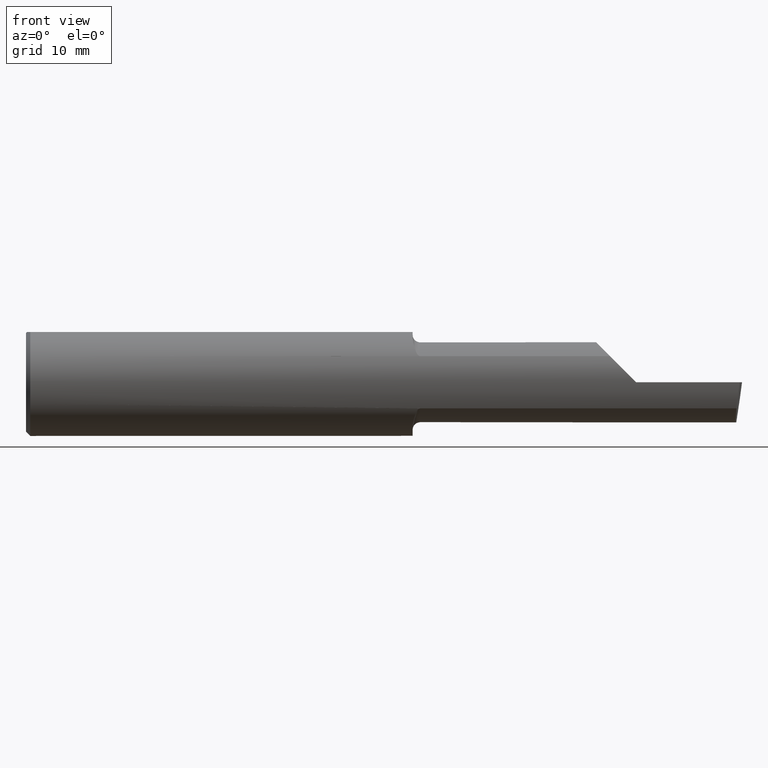
[diagram: clean part render]
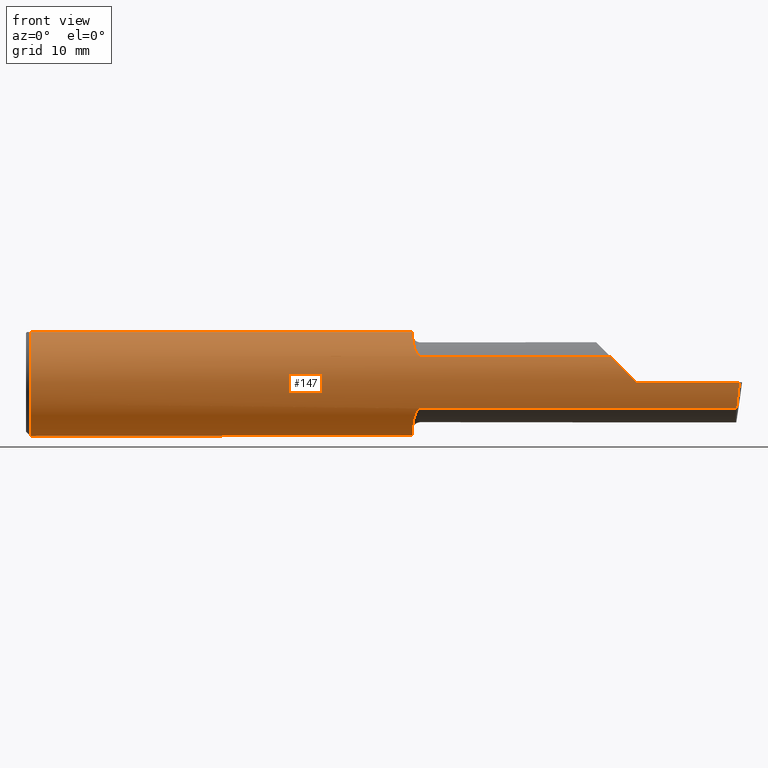
[diagram: same view with one face highlighted and labeled with its STEP entity id]
A machine part, front view. The second image highlights one B-rep face of the part: STEP entity #147.
In plain terms, the highlighted cylindrical surface (partial cylindrical patch) has radius 4.7587 mm, axis along (-1, -0, -0).
Its self-contained STEP definition (entity closure, byte-faithful):
#3 = B_SPLINE_CURVE_WITH_KNOTS ( 'NONE', 3,
 ( #516, #86, #189, #231, #9, #534, #380, #150, #422, #442, #573, #376, #489, #249 ),
 .UNSPECIFIED., .F., .F.,
 ( 4, 2, 2, 2, 2, 2, 4 ),
 ( 0.0002471551878304217224, 0.0008987327522055606026, 0.001550310316580699645, 0.002201887880955838254, 0.002527676663143406475, 0.002690571054237190368, 0.002853465445330974262 ),
 .UNSPECIFIED. ) ;
#4 = VECTOR ( 'NONE', #335, 39.37007874015748143 ) ;
#9 = CARTESIAN_POINT ( 'NONE',  ( 1.353025912205683357, -0.1310442973014113721, 0.1341609063345044484 ) ) ;
#11 = EDGE_LOOP ( 'NONE', ( #216, #279, #407, #417, #600, #201, #322, #625, #343, #109, #19, #45, #177 ) ) ;
#15 = CARTESIAN_POINT ( 'NONE',  ( 2.481080296960508580, -0.1635956445993030639, -0.09130436773856169530 ) ) ;
#18 = CARTESIAN_POINT ( 'NONE',  ( 2.491672876940991710, -0.1873499999999999888, 6.915950918908297591E-17 ) ) ;
#19 = ORIENTED_EDGE ( 'NONE', *, *, #462, .T. ) ;
#30 = LINE ( 'NONE', #225, #219 ) ;
#35 = LINE ( 'NONE', #388, #362 ) ;
#36 = VERTEX_POINT ( 'NONE', #385 ) ;
#39 = CARTESIAN_POINT ( 'NONE',  ( 0.01499999999999999424, 0.000000000000000000, 0.000000000000000000 ) ) ;
#40 = DIRECTION ( 'NONE',  ( 0.000000000000000000, 0.000000000000000000, 1.000000000000000000 ) ) ;
#43 = CARTESIAN_POINT ( 'NONE',  ( 0.01499999999999999424, 0.000000000000000000, -0.1873499999999999888 ) ) ;
#45 = ORIENTED_EDGE ( 'NONE', *, *, #159, .F. ) ;
#47 = CARTESIAN_POINT ( 'NONE',  ( 1.358068207442170383, -0.1478915270140208904, -0.1153063024254926405 ) ) ;
#49 = EDGE_CURVE ( 'NONE', #288, #395, #148, .T. ) ;
#74 = VERTEX_POINT ( 'NONE', #433 ) ;
#78 = DIRECTION ( 'NONE',  ( -1.000000000000000000, -0.000000000000000000, -0.000000000000000000 ) ) ;
#86 = CARTESIAN_POINT ( 'NONE',  ( 1.350000000000000311, -0.1045012500212953166, 0.1557348687830035772 ) ) ;
#88 = CYLINDRICAL_SURFACE ( 'NONE', #547, 0.1873499999999999888 ) ;
#90 = CIRCLE ( 'NONE', #260, 0.1873499999999999888 ) ;
#91 = DIRECTION ( 'NONE',  ( 0.000000000000000000, 0.000000000000000000, 1.000000000000000000 ) ) ;
#93 = CARTESIAN_POINT ( 'NONE',  ( 1.375000000000000000, -0.1635956445993029251, -0.09130436773856182020 ) ) ;
#101 = AXIS2_PLACEMENT_3D ( 'NONE', #397, #199, #394 ) ;
#109 = ORIENTED_EDGE ( 'NONE', *, *, #555, .F. ) ;
#112 = DIRECTION ( 'NONE',  ( 1.000000000000000000, 6.829619984160658046E-18, 0.000000000000000000 ) ) ;
#116 = EDGE_CURVE ( 'NONE', #395, #318, #530, .T. ) ;
#119 = VECTOR ( 'NONE', #429, 39.37007874015748143 ) ;
#130 = CARTESIAN_POINT ( 'NONE',  ( 0.01499999999999997863, -0.06597272163553657975, 0.1753499999999999781 ) ) ;
#133 = CARTESIAN_POINT ( 'NONE',  ( 1.356145841430604237, -0.1426194794824337531, -0.1217813759115469463 ) ) ;
#136 = CIRCLE ( 'NONE', #188, 0.1873499999999999888 ) ;
#139 = CARTESIAN_POINT ( 'NONE',  ( 2.066758987970638284, -0.1792580844883770730, 0.06324101202936138755 ) ) ;
#141 = CARTESIAN_POINT ( 'NONE',  ( 0.000000000000000000, -0.06597272163553657975, 0.1753499999999999781 ) ) ;
#145 = CIRCLE ( 'NONE', #101, 0.1873499999999999888 ) ;
#147 = ADVANCED_FACE ( 'NONE', ( #517 ), #88, .T. ) ;
#148 = LINE ( 'NONE', #281, #4 ) ;
#150 = CARTESIAN_POINT ( 'NONE',  ( 1.362204638458737405, -0.1550630761760522225, 0.1052254855377564996 ) ) ;
#152 = CARTESIAN_POINT ( 'NONE',  ( 2.481080296960508580, -0.1635956445993030639, -0.09130436773856169530 ) ) ;
#156 = CARTESIAN_POINT ( 'NONE',  ( 2.484117089522337452, -0.1792580844883771285, -0.06324101202936134591 ) ) ;
#158 = CARTESIAN_POINT ( 'NONE',  ( 1.375000000000000000, -0.1635956445993029251, -0.09130436773856182020 ) ) ;
#159 = EDGE_CURVE ( 'NONE', #210, #74, #277, .T. ) ;
#175 = VERTEX_POINT ( 'NONE', #15 ) ;
#177 = ORIENTED_EDGE ( 'NONE', *, *, #601, .F. ) ;
#188 = AXIS2_PLACEMENT_3D ( 'NONE', #564, #78, #270 ) ;
#189 = CARTESIAN_POINT ( 'NONE',  ( 1.350383728133730532, -0.1114837668894150813, 0.1508119329971097655 ) ) ;
#193 = EDGE_CURVE ( 'NONE', #36, #545, #145, .T. ) ;
#197 = CARTESIAN_POINT ( 'NONE',  ( 2.129999999999999893, -0.1873499999999999888, 1.065442715258197396E-16 ) ) ;
#199 = DIRECTION ( 'NONE',  ( 1.000000000000000000, 6.829619984160658046E-18, 0.000000000000000000 ) ) ;
#201 = ORIENTED_EDGE ( 'NONE', *, *, #581, .F. ) ;
#203 = CARTESIAN_POINT ( 'NONE',  ( 2.038695632261437130, -0.1635956445993029529, 0.09130436773856188959 ) ) ;
#209 = DIRECTION ( 'NONE',  ( 0.000000000000000000, 1.000000000000000000, 0.000000000000000000 ) ) ;
#210 = VERTEX_POINT ( 'NONE', #340 ) ;
#216 = ORIENTED_EDGE ( 'NONE', *, *, #531, .F. ) ;
#219 = VECTOR ( 'NONE', #228, 39.37007874015748143 ) ;
#223 = CARTESIAN_POINT ( 'NONE',  ( 2.129999999999999893, -0.1873499999999999888, 1.065442715258197396E-16 ) ) ;
#225 = CARTESIAN_POINT ( 'NONE',  ( 0.000000000000000000, 0.06597272163553663527, 0.1753499999999999781 ) ) ;
#228 = DIRECTION ( 'NONE',  ( 1.000000000000000000, 0.000000000000000000, 0.000000000000000000 ) ) ;
#231 = CARTESIAN_POINT ( 'NONE',  ( 1.351891754936544787, -0.1247344934163566177, 0.1400506178720502537 ) ) ;
#240 = DIRECTION ( 'NONE',  ( -1.000000000000000000, -6.829619984160658046E-18, -0.000000000000000000 ) ) ;
#249 = CARTESIAN_POINT ( 'NONE',  ( 1.375000000000000000, -0.1635956445993028141, 0.09130436773856194510 ) ) ;
#253 = CARTESIAN_POINT ( 'NONE',  ( 0.01499999999999999424, 0.06597272163553663527, 0.1753499999999999781 ) ) ;
#254 = AXIS2_PLACEMENT_3D ( 'NONE', #493, #112, #209 ) ;
#257 = EDGE_CURVE ( 'NONE', #175, #288, #575, .T. ) ;
#260 = AXIS2_PLACEMENT_3D ( 'NONE', #39, #328, #91 ) ;
#264 = CARTESIAN_POINT ( 'NONE',  ( 1.375000000000000000, -0.1635956445993028141, 0.09130436773856194510 ) ) ;
#270 = DIRECTION ( 'NONE',  ( 0.000000000000000000, 0.000000000000000000, 1.000000000000000000 ) ) ;
#271 = VERTEX_POINT ( 'NONE', #253 ) ;
#277 = CIRCLE ( 'NONE', #254, 0.1873499999999999888 ) ;
#279 = ORIENTED_EDGE ( 'NONE', *, *, #257, .T. ) ;
#280 = CARTESIAN_POINT ( 'NONE',  ( 1.350000000000000089, -0.1045082199249680460, -0.1557306416133593940 ) ) ;
#281 = CARTESIAN_POINT ( 'NONE',  ( 3.377502344341257155E-32, -0.1873499999999999610, 3.267291166268304703E-16 ) ) ;
#285 = CARTESIAN_POINT ( 'NONE',  ( 1.370881499230869771, -0.1628722075910989942, -0.09260290410947884243 ) ) ;
#288 = VERTEX_POINT ( 'NONE', #501 ) ;
#290 = CARTESIAN_POINT ( 'NONE',  ( 2.038695632261437130, -0.1635956445993029529, 0.09130436773856188959 ) ) ;
#294 = CARTESIAN_POINT ( 'NONE',  ( 1.350000000000000089, -0.09715400696864118224, 0.1601908905959924245 ) ) ;
#295 = CARTESIAN_POINT ( 'NONE',  ( 2.487725449370724817, -0.1873500000000000443, -0.03213820089768505694 ) ) ;
#306 = CARTESIAN_POINT ( 'NONE',  ( 1.767500000000000293, -0.1635956445993030639, 0.09130436773856169530 ) ) ;
#318 = VERTEX_POINT ( 'NONE', #203 ) ;
#322 = ORIENTED_EDGE ( 'NONE', *, *, #193, .F. ) ;
#324 = CARTESIAN_POINT ( 'NONE',  ( 1.350384441902395372, -0.1115101367984838859, -0.1507946173152224789 ) ) ;
#328 = DIRECTION ( 'NONE',  ( -1.000000000000000000, -0.000000000000000000, -0.000000000000000000 ) ) ;
#335 = DIRECTION ( 'NONE',  ( -1.000000000000000000, -0.000000000000000000, -0.000000000000000000 ) ) ;
#340 = CARTESIAN_POINT ( 'NONE',  ( 1.350000000000000089, -0.09715400696864118224, -0.1601908905959924245 ) ) ;
#343 = ORIENTED_EDGE ( 'NONE', *, *, #449, .F. ) ;
#362 = VECTOR ( 'NONE', #240, 39.37007874015748143 ) ;
#365 = CARTESIAN_POINT ( 'NONE',  ( 1.350000000000000089, -0.09715400696864118224, -0.1601908905959924245 ) ) ;
#373 = CARTESIAN_POINT ( 'NONE',  ( 1.367975941902153103, -0.1612443294219079448, -0.09540922431498236045 ) ) ;
#376 = CARTESIAN_POINT ( 'NONE',  ( 1.370903862568969123, -0.1628809688430619684, 0.09258733509388514249 ) ) ;
#380 = CARTESIAN_POINT ( 'NONE',  ( 1.358072954143140221, -0.1479074971576197217, 0.1152872342625233248 ) ) ;
#383 = CARTESIAN_POINT ( 'NONE',  ( 2.097861799102314961, -0.1873500000000000165, 0.03213820089768509858 ) ) ;
#385 = CARTESIAN_POINT ( 'NONE',  ( 1.350000000000000089, -0.06597272163553659363, 0.1753499999999999781 ) ) ;
#388 = CARTESIAN_POINT ( 'NONE',  ( 1.767500000000000293, -0.1635956445993030639, -0.09130436773856169530 ) ) ;
#391 = CARTESIAN_POINT ( 'NONE',  ( 1.353041727949557238, -0.1311116946065050692, -0.1340922927843371526 ) ) ;
#394 = DIRECTION ( 'NONE',  ( 0.000000000000000000, 1.000000000000000000, 0.000000000000000000 ) ) ;
#395 = VERTEX_POINT ( 'NONE', #223 ) ;
#397 = CARTESIAN_POINT ( 'NONE',  ( 1.350000000000000089, 0.000000000000000000, 0.000000000000000000 ) ) ;
#407 = ORIENTED_EDGE ( 'NONE', *, *, #49, .T. ) ;
#417 = ORIENTED_EDGE ( 'NONE', *, *, #116, .T. ) ;
#422 = CARTESIAN_POINT ( 'NONE',  ( 1.363764108097883510, -0.1573043405450769150, 0.1018329020719639239 ) ) ;
#425 = CARTESIAN_POINT ( 'NONE',  ( 1.372779935319434097, -0.1635956445993029806, -0.09130436773856182020 ) ) ;
#429 = DIRECTION ( 'NONE',  ( -1.000000000000000000, -0.000000000000000000, -0.000000000000000000 ) ) ;
#432 = CARTESIAN_POINT ( 'NONE',  ( 1.351903396790307132, -0.1248165254919060274, -0.1399798634953947352 ) ) ;
#433 = CARTESIAN_POINT ( 'NONE',  ( 1.350000000000000089, 0.06597272163553663527, 0.1753499999999999781 ) ) ;
#442 = CARTESIAN_POINT ( 'NONE',  ( 1.366855994529494023, -0.1603175578889966257, 0.09696363432848485731 ) ) ;
#449 = EDGE_CURVE ( 'NONE', #577, #468, #136, .T. ) ;
#462 = EDGE_CURVE ( 'NONE', #271, #74, #30, .T. ) ;
#468 = VERTEX_POINT ( 'NONE', #130 ) ;
#472 = CARTESIAN_POINT ( 'NONE',  ( 1.362184598714913042, -0.1550322129197695409, -0.1052705638704084928 ) ) ;
#474 = DIRECTION ( 'NONE',  ( -1.000000000000000000, -0.000000000000000000, -0.000000000000000000 ) ) ;
#479 = CARTESIAN_POINT ( 'NONE',  ( 1.366814909379087783, -0.1602818635245156220, -0.09702252612905312712 ) ) ;
#483 = B_SPLINE_CURVE_WITH_KNOTS ( 'NONE', 3,
 ( #93, #425, #285, #373, #479, #566, #472, #47, #133, #391, #432, #324, #280, #365 ),
 .UNSPECIFIED., .F., .F.,
 ( 4, 2, 2, 2, 2, 2, 4 ),
 ( 1.968340875534775581E-07, 0.0001667114270246265121, 0.0003332260199616995542, 0.0006662552058358557757, 0.001332313577584160738, 0.001998371949332465591, 0.002664430321080771095 ),
 .UNSPECIFIED. ) ;
#488 = VERTEX_POINT ( 'NONE', #264 ) ;
#489 = CARTESIAN_POINT ( 'NONE',  ( 1.372800914500664771, -0.1635956445997548414, 0.09130436773775266190 ) ) ;
#493 = CARTESIAN_POINT ( 'NONE',  ( 1.350000000000000089, 0.000000000000000000, 0.000000000000000000 ) ) ;
#501 = CARTESIAN_POINT ( 'NONE',  ( 2.491672876940991710, -0.1873499999999999888, 6.915950918908297591E-17 ) ) ;
#505 = LINE ( 'NONE', #306, #614 ) ;
#516 = CARTESIAN_POINT ( 'NONE',  ( 1.350000000000000089, -0.09715400696864118224, 0.1601908905959924245 ) ) ;
#517 = FACE_OUTER_BOUND ( 'NONE', #11, .T. ) ;
#518 = LINE ( 'NONE', #141, #119 ) ;
#530 =( BOUNDED_CURVE ( )  B_SPLINE_CURVE ( 3, ( #197, #383, #139, #290 ),
 .UNSPECIFIED., .F., .T. ) 
 B_SPLINE_CURVE_WITH_KNOTS ( ( 4, 4 ),
 ( 4.712388980384689674, 5.221437360734125122 ),
 .UNSPECIFIED. ) 
 CURVE ( )  GEOMETRIC_REPRESENTATION_ITEM ( )  RATIONAL_B_SPLINE_CURVE ( ( 1.000000000000000000, 0.9785221379938656705, 0.9785221379938656705, 1.000000000000000000 ) ) 
 REPRESENTATION_ITEM ( '' )  );
#531 = EDGE_CURVE ( 'NONE', #175, #607, #35, .T. ) ;
#534 = CARTESIAN_POINT ( 'NONE',  ( 1.356142321956750996, -0.1426151417460929660, 0.1217894822571234520 ) ) ;
#545 = VERTEX_POINT ( 'NONE', #294 ) ;
#546 = EDGE_CURVE ( 'NONE', #36, #468, #518, .T. ) ;
#547 = AXIS2_PLACEMENT_3D ( 'NONE', #624, #474, #40 ) ;
#555 = EDGE_CURVE ( 'NONE', #271, #577, #90, .T. ) ;
#564 = CARTESIAN_POINT ( 'NONE',  ( 0.01499999999999999424, 0.000000000000000000, 0.000000000000000000 ) ) ;
#566 = CARTESIAN_POINT ( 'NONE',  ( 1.363743174082350018, -0.1572750258711008153, -0.1018777902325215673 ) ) ;
#573 = CARTESIAN_POINT ( 'NONE',  ( 1.368001859868116954, -0.1612625562479369501, 0.09537826053888209810 ) ) ;
#575 =( BOUNDED_CURVE ( )  B_SPLINE_CURVE ( 3, ( #152, #156, #295, #18 ),
 .UNSPECIFIED., .F., .T. ) 
 B_SPLINE_CURVE_WITH_KNOTS ( ( 4, 4 ),
 ( 0.8516985021657653698, 1.360746882515200484 ),
 .UNSPECIFIED. ) 
 CURVE ( )  GEOMETRIC_REPRESENTATION_ITEM ( )  RATIONAL_B_SPLINE_CURVE ( ( 1.000000000000000000, 0.9785221379938656705, 0.9785221379938656705, 1.000000000000000000 ) ) 
 REPRESENTATION_ITEM ( '' )  );
#577 = VERTEX_POINT ( 'NONE', #43 ) ;
#581 = EDGE_CURVE ( 'NONE', #545, #488, #3, .T. ) ;
#600 = ORIENTED_EDGE ( 'NONE', *, *, #621, .F. ) ;
#601 = EDGE_CURVE ( 'NONE', #607, #210, #483, .T. ) ;
#604 = DIRECTION ( 'NONE',  ( 1.000000000000000000, 6.829619984160658046E-18, 0.000000000000000000 ) ) ;
#607 = VERTEX_POINT ( 'NONE', #158 ) ;
#614 = VECTOR ( 'NONE', #604, 39.37007874015748143 ) ;
#621 = EDGE_CURVE ( 'NONE', #488, #318, #505, .T. ) ;
#624 = CARTESIAN_POINT ( 'NONE',  ( 0.000000000000000000, 0.000000000000000000, 0.000000000000000000 ) ) ;
#625 = ORIENTED_EDGE ( 'NONE', *, *, #546, .T. ) ;